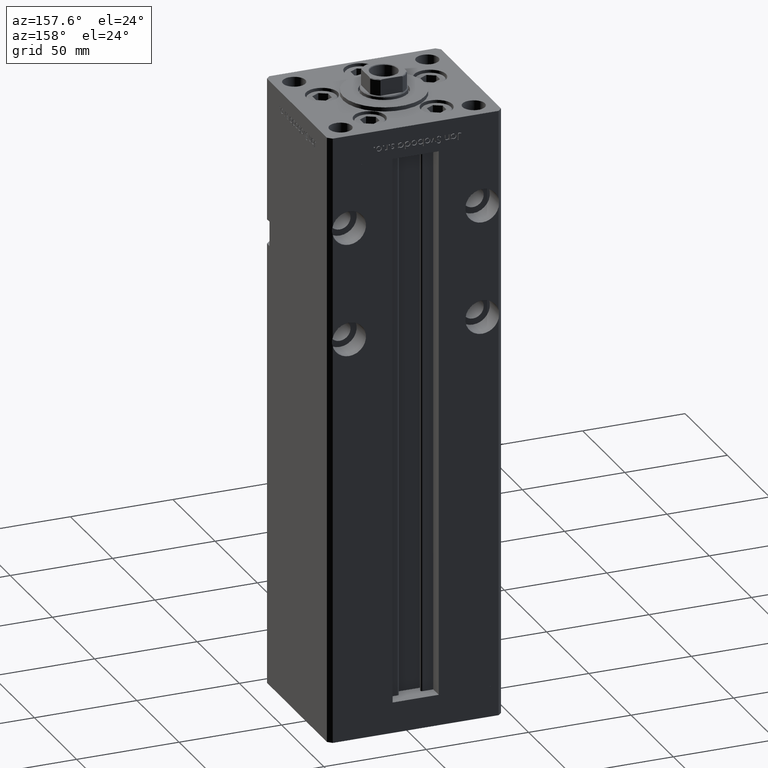
[diagram: clean part render]
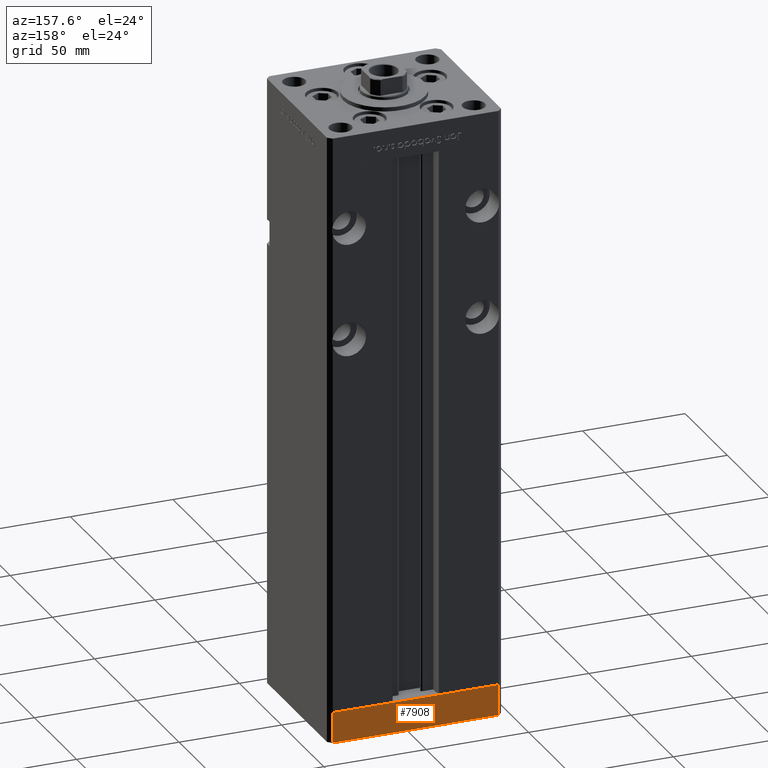
[diagram: same view with one face highlighted and labeled with its STEP entity id]
A machine part, auxiliary view. The second image highlights one B-rep face of the part: STEP entity #7908.
In plain terms, the highlighted planar face has unit normal (-0, 1, 0).
Its self-contained STEP definition (entity closure, byte-faithful):
#177 = ORIENTED_EDGE ( 'NONE', *, *, #20461, .F. ) ;
#3190 = VECTOR ( 'NONE', #49442, 1000.000000000000000 ) ;
#4701 = CARTESIAN_POINT ( 'NONE',  ( -40.50000000000000711, 37.49999999999997868, -15.00000000000000000 ) ) ;
#4794 = ORIENTED_EDGE ( 'NONE', *, *, #20198, .T. ) ;
#6139 = DIRECTION ( 'NONE',  ( -1.000000000000000000, -3.426614273534436165E-16, 0.000000000000000000 ) ) ;
#6175 = LINE ( 'NONE', #51377, #49372 ) ;
#6966 = VERTEX_POINT ( 'NONE', #24122 ) ;
#7550 = LINE ( 'NONE', #44439, #42517 ) ;
#7908 = ADVANCED_FACE ( 'NONE', ( #44109 ), #28757, .T. ) ;
#11943 = ORIENTED_EDGE ( 'NONE', *, *, #32579, .T. ) ;
#16465 = VERTEX_POINT ( 'NONE', #4701 ) ;
#20198 = EDGE_CURVE ( 'NONE', #16465, #49834, #7550, .T. ) ;
#20461 = EDGE_CURVE ( 'NONE', #39305, #49834, #6175, .T. ) ;
#22313 = CARTESIAN_POINT ( 'NONE',  ( 40.49999999999991473, 37.50000000000000711, -15.00000000000000000 ) ) ;
#24122 = CARTESIAN_POINT ( 'NONE',  ( 40.49999999999991473, 37.50000000000000711, -15.00000000000000000 ) ) ;
#26769 = ORIENTED_EDGE ( 'NONE', *, *, #27843, .F. ) ;
#27707 = CARTESIAN_POINT ( 'NONE',  ( 40.49999999999991473, 37.50000000000000711, -15.00000000000000000 ) ) ;
#27843 = EDGE_CURVE ( 'NONE', #6966, #39305, #28228, .T. ) ;
#27965 = DIRECTION ( 'NONE',  ( -3.426614273534436165E-16, 1.000000000000000000, 0.000000000000000000 ) ) ;
#28228 = LINE ( 'NONE', #27707, #3190 ) ;
#28566 = DIRECTION ( 'NONE',  ( 0.000000000000000000, 0.000000000000000000, 1.000000000000000000 ) ) ;
#28757 = PLANE ( 'NONE',  #47442 ) ;
#31609 = VECTOR ( 'NONE', #6139, 1000.000000000000000 ) ;
#31742 = DIRECTION ( 'NONE',  ( -1.000000000000000000, -3.426614273534436165E-16, 0.000000000000000000 ) ) ;
#32579 = EDGE_CURVE ( 'NONE', #6966, #16465, #43031, .T. ) ;
#32957 = EDGE_LOOP ( 'NONE', ( #177, #26769, #11943, #4794 ) ) ;
#33296 = CARTESIAN_POINT ( 'NONE',  ( -40.50000000000000711, 37.49999999999997868, 0.000000000000000000 ) ) ;
#33993 = CARTESIAN_POINT ( 'NONE',  ( 40.49999999999991473, 37.50000000000000711, 0.000000000000000000 ) ) ;
#39305 = VERTEX_POINT ( 'NONE', #33993 ) ;
#41138 = CARTESIAN_POINT ( 'NONE',  ( 40.49999999999991473, 37.50000000000000711, -15.00000000000000000 ) ) ;
#42517 = VECTOR ( 'NONE', #28566, 1000.000000000000000 ) ;
#43031 = LINE ( 'NONE', #22313, #31609 ) ;
#44109 = FACE_OUTER_BOUND ( 'NONE', #32957, .T. ) ;
#44439 = CARTESIAN_POINT ( 'NONE',  ( -40.50000000000000711, 37.49999999999997868, -15.00000000000000000 ) ) ;
#45160 = DIRECTION ( 'NONE',  ( -1.000000000000000000, -3.426614273534436165E-16, 0.000000000000000000 ) ) ;
#47442 = AXIS2_PLACEMENT_3D ( 'NONE', #41138, #27965, #45160 ) ;
#49372 = VECTOR ( 'NONE', #31742, 1000.000000000000000 ) ;
#49442 = DIRECTION ( 'NONE',  ( 0.000000000000000000, 0.000000000000000000, 1.000000000000000000 ) ) ;
#49834 = VERTEX_POINT ( 'NONE', #33296 ) ;
#51377 = CARTESIAN_POINT ( 'NONE',  ( 40.49999999999991473, 37.50000000000000711, 0.000000000000000000 ) ) ;